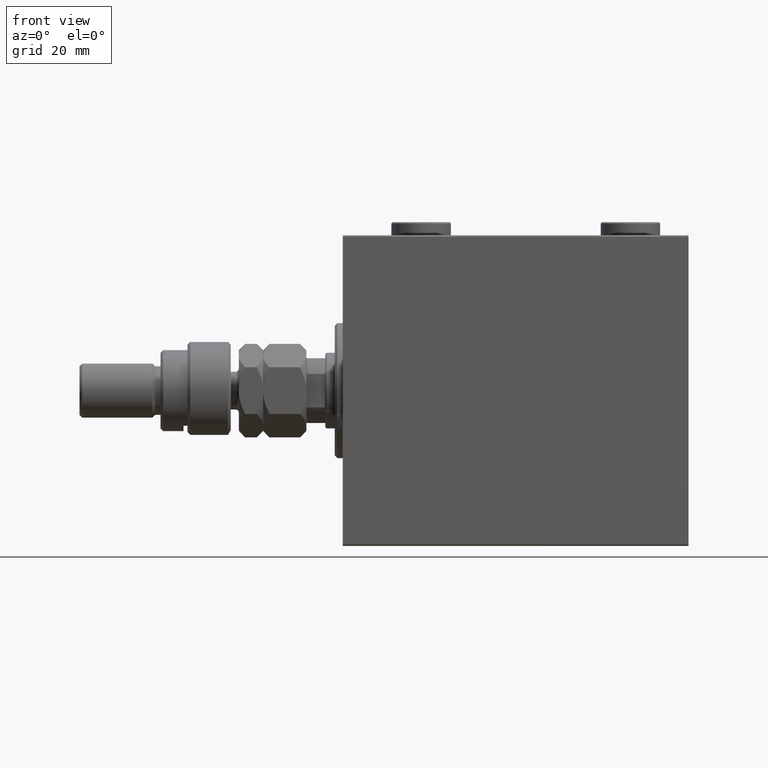
[diagram: clean part render]
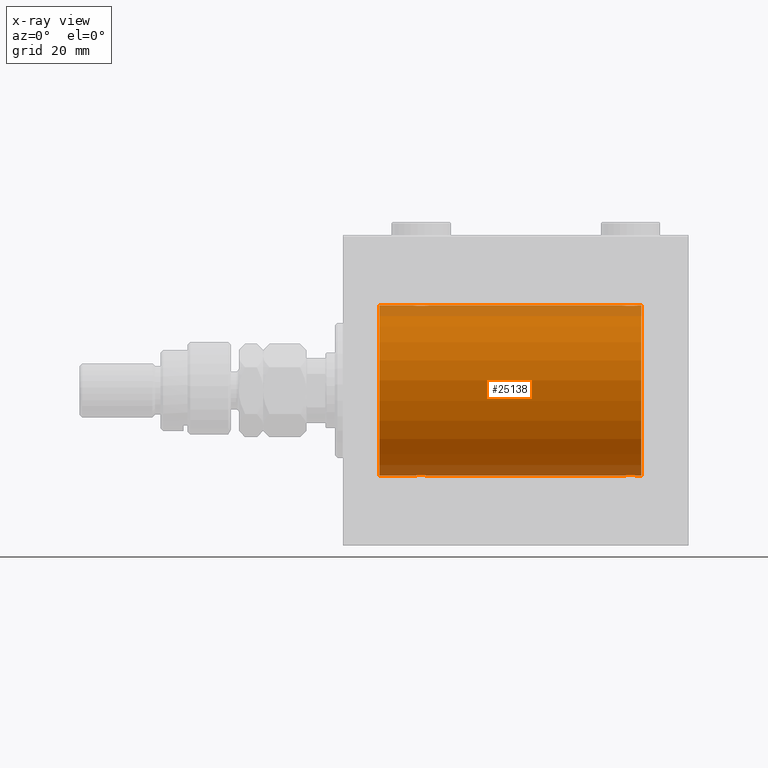
[diagram: x-ray — body ghosted, one internal face saturated and labeled with its STEP entity id]
A machine part, front view, then the same camera in x-ray: the body is ghosted and one INTERNAL B-rep face — a face not visible from any outside direction — is saturated and labeled: STEP entity #25138.
In plain terms, the highlighted cylindrical surface (partial cylindrical patch) has radius 31.5 mm, axis along (-1, -0, -0).
Its self-contained STEP definition (entity closure, byte-faithful):
#135 = CARTESIAN_POINT ( 'NONE',  ( 31.26095462456130747, -1.981494824113326114, -31.43792153503156683 ) ) ;
#261 = CARTESIAN_POINT ( 'NONE',  ( 105.1713458531249188, -2.696917666262924840, -31.38442820068731365 ) ) ;
#388 = CARTESIAN_POINT ( 'NONE',  ( 26.07979337049960478, -0.7905881588836203289, -31.49214662150069088 ) ) ;
#409 = CARTESIAN_POINT ( 'NONE',  ( 109.5000000000000142, -2.415502498297804861E-16, 31.50000000000000000 ) ) ;
#503 = CARTESIAN_POINT ( 'NONE',  ( 108.8850144227692880, -1.830470878313876781, -31.44719957596828763 ) ) ;
#658 = CARTESIAN_POINT ( 'NONE',  ( 26.73904537543869608, -1.981494824113328779, 31.43792153503155973 ) ) ;
#727 = CARTESIAN_POINT ( 'NONE',  ( 103.8980785956084389, -1.506272792558335683, -31.46439306106695710 ) ) ;
#852 = CARTESIAN_POINT ( 'NONE',  ( 28.60885452660059869, -2.980809450819698725, -31.35867074198615256 ) ) ;
#1371 = EDGE_CURVE ( 'NONE', #27988, #7503, #14608, .T. ) ;
#2245 = CARTESIAN_POINT ( 'NONE',  ( 110.5000000000000000, 0.000000000000000000, 0.000000000000000000 ) ) ;
#2847 = CARTESIAN_POINT ( 'NONE',  ( 103.5000000000000284, -0.1958045626907495562, 31.50000000000000000 ) ) ;
#2883 = EDGE_CURVE ( 'NONE', #27659, #11415, #46696, .T. ) ;
#3019 = CARTESIAN_POINT ( 'NONE',  ( 26.00000000000000355, -6.595038141055444136E-15, -31.50000000000000000 ) ) ;
#3113 = CARTESIAN_POINT ( 'NONE',  ( 13.49999999999999822, 0.000000000000000000, 31.50000000000000000 ) ) ;
#3415 = CIRCLE ( 'NONE', #5778, 31.50000000000000000 ) ;
#3555 = CARTESIAN_POINT ( 'NONE',  ( 27.01856537126958813, -2.261012035264781783, -31.41905495618428645 ) ) ;
#3627 = ORIENTED_EDGE ( 'NONE', *, *, #1371, .F. ) ;
#3667 = CARTESIAN_POINT ( 'NONE',  ( 106.3041770556056349, -3.000152387858500802, -31.35680286115499626 ) ) ;
#3789 = CARTESIAN_POINT ( 'NONE',  ( 31.98101509391517538, -0.3904857149111993775, -31.49817436802766224 ) ) ;
#4149 = CYLINDRICAL_SURFACE ( 'NONE', #10415, 31.50000000000000000 ) ;
#4324 = CARTESIAN_POINT ( 'NONE',  ( 26.30285761163300151, -1.328004386210305698, 31.47251238182140298 ) ) ;
#4391 = CARTESIAN_POINT ( 'NONE',  ( 104.6729577462973282, -2.387531469909792481, -31.40957782495775419 ) ) ;
#4512 = B_SPLINE_CURVE_WITH_KNOTS ( 'NONE', 3,
 ( #14526, #2847, #17695, #28895, #22319, #43754, #33503, #13803, #25003, #39865, #25242, #21590, #6506, #36442, #17931, #18896, #15713, #12066, #30098, #26922, #30805, #30559, #23511, #4528, #22554, #41775, #37412, #4768, #26441, #19612, #34457, #409 ),
 .UNSPECIFIED., .F., .F.,
 ( 4, 2, 2, 2, 2, 2, 2, 2, 2, 2, 2, 2, 2, 2, 2, 4 ),
 ( 0.009384682587134660428, 0.009971088165454063124, 0.01055749374377346582, 0.01114389932209286851, 0.01173030490041227121, 0.01231671047873167217, 0.01290311605705107313, 0.01348952163537047583, 0.01407592721368987679, 0.01466233279200927775, 0.01524873837032867871, 0.01583514394864807967, 0.01642154952696748410, 0.01700795510528688506, 0.01759436068360628602, 0.01876717184024507407 ),
 .UNSPECIFIED. ) ;
#4528 = CARTESIAN_POINT ( 'NONE',  ( 108.3270422537027144, -2.387531469909779158, 31.40957782495775419 ) ) ;
#4620 = CARTESIAN_POINT ( 'NONE',  ( 108.3304369148700204, -2.384935707362452195, -31.40977595730572247 ) ) ;
#4768 = CARTESIAN_POINT ( 'NONE',  ( 109.1019214043915326, -1.506272792558327245, 31.46439306106695710 ) ) ;
#5160 = CARTESIAN_POINT ( 'NONE',  ( 103.5000000000000142, -1.354660151018645615E-14, -31.50000000000000000 ) ) ;
#5228 = EDGE_CURVE ( 'NONE', #27988, #44416, #13502, .T. ) ;
#5512 = CARTESIAN_POINT ( 'NONE',  ( 31.92020662950040943, -0.7905881588836116691, 31.49214662150068378 ) ) ;
#5778 = AXIS2_PLACEMENT_3D ( 'NONE', #15623, #19761, #8323 ) ;
#5974 = DIRECTION ( 'NONE',  ( -1.000000000000000000, -0.000000000000000000, -0.000000000000000000 ) ) ;
#6045 = DIRECTION ( 'NONE',  ( -1.000000000000000000, -0.000000000000000000, -0.000000000000000000 ) ) ;
#6479 = CARTESIAN_POINT ( 'NONE',  ( 32.00000000000001421, -0.3965830985361748495, 31.50000000000001421 ) ) ;
#6491 = CARTESIAN_POINT ( 'NONE',  ( 32.00000000000000000, 3.857637396137448068E-15, -31.50000000000000000 ) ) ;
#6506 = CARTESIAN_POINT ( 'NONE',  ( 105.1676004190083944, -2.695056442718549494, 31.38458855656185875 ) ) ;
#7090 = VERTEX_POINT ( 'NONE', #14230 ) ;
#7324 = CARTESIAN_POINT ( 'NONE',  ( 107.4694445565852305, -2.845838211243347793, -31.37127560316186603 ) ) ;
#7448 = CARTESIAN_POINT ( 'NONE',  ( 32.00000000000001421, -0.1958045626907418957, -31.50000000000000711 ) ) ;
#7503 = VERTEX_POINT ( 'NONE', #38012 ) ;
#7561 = CARTESIAN_POINT ( 'NONE',  ( 106.8953411100009703, -2.980257240990069167, -31.35872356503797320 ) ) ;
#7678 = CARTESIAN_POINT ( 'NONE',  ( 28.03484270189360217, -2.847307171789034808, -31.37114183851420179 ) ) ;
#7790 = DIRECTION ( 'NONE',  ( 0.000000000000000000, 0.000000000000000000, 1.000000000000000000 ) ) ;
#7964 = CARTESIAN_POINT ( 'NONE',  ( 26.09580549261944427, -0.7775502215293862429, 31.49099686045558144 ) ) ;
#8160 = CARTESIAN_POINT ( 'NONE',  ( 30.98460359924664687, -2.258226318633781649, -31.41925597582825702 ) ) ;
#8291 = EDGE_CURVE ( 'NONE', #7503, #7090, #26103, .T. ) ;
#8323 = DIRECTION ( 'NONE',  ( 0.000000000000000000, 0.000000000000000000, 1.000000000000000000 ) ) ;
#8627 = CARTESIAN_POINT ( 'NONE',  ( 26.00000000000000355, -6.595038141055444136E-15, -31.50000000000000000 ) ) ;
#8778 = CARTESIAN_POINT ( 'NONE',  ( 110.5000000000000000, 3.857637417314162689E-15, -31.50000000000000000 ) ) ;
#9152 = CARTESIAN_POINT ( 'NONE',  ( 31.38246872266631371, -1.833765390051040223, 31.44700610425690712 ) ) ;
#9274 = VECTOR ( 'NONE', #10085, 1000.000000000000000 ) ;
#9800 = DIRECTION ( 'NONE',  ( 0.000000000000000000, 0.000000000000000000, 1.000000000000000000 ) ) ;
#9878 = CARTESIAN_POINT ( 'NONE',  ( 30.32865414687508832, -2.696917666262907520, 31.38442820068731365 ) ) ;
#10085 = DIRECTION ( 'NONE',  ( -1.000000000000000000, -0.000000000000000000, -0.000000000000000000 ) ) ;
#10118 = CARTESIAN_POINT ( 'NONE',  ( 28.03055544341478722, -2.845838211243333138, 31.37127560316186603 ) ) ;
#10236 = B_SPLINE_CURVE_WITH_KNOTS ( 'NONE', 3,
 ( #11206, #11675, #22895, #12156, #26534, #22172, #11917, #503, #40683, #18749, #4620, #19466, #40927, #7324, #37033, #7561, #37754, #3667, #18996, #15341, #33356, #261, #19231, #4391, #22409, #34074, #37510, #727, #37268, #33604, #29958, #44815 ),
 .UNSPECIFIED., .F., .F.,
 ( 4, 2, 2, 2, 2, 2, 2, 2, 2, 2, 2, 2, 2, 2, 2, 4 ),
 ( 0.009384682587134677775, 0.009971088165454078736, 0.01055749374377348143, 0.01114389932209288239, 0.01173030490041228509, 0.01231671047873168778, 0.01290311605705108874, 0.01348952163537048970, 0.01407592721368989067, 0.01466233279200929336, 0.01524873837032869606, 0.01583514394864809702, 0.01642154952696749798, 0.01700795510528689894, 0.01759436068360629990, 0.01876717184024510529 ),
 .UNSPECIFIED. ) ;
#10415 = AXIS2_PLACEMENT_3D ( 'NONE', #29703, #45273, #7790 ) ;
#11081 = CARTESIAN_POINT ( 'NONE',  ( 28.80417705560560648, -3.000152387858484371, -31.35680286115500337 ) ) ;
#11206 = CARTESIAN_POINT ( 'NONE',  ( 109.5000000000000142, 3.857637396143758955E-15, -31.50000000000000000 ) ) ;
#11327 = CARTESIAN_POINT ( 'NONE',  ( 26.00000000000000355, -0.3965830985361813443, -31.50000000000000711 ) ) ;
#11415 = VERTEX_POINT ( 'NONE', #35620 ) ;
#11615 = ORIENTED_EDGE ( 'NONE', *, *, #26136, .T. ) ;
#11675 = CARTESIAN_POINT ( 'NONE',  ( 109.5000000000000284, -0.1958045626907434222, -31.50000000000000711 ) ) ;
#11842 = CARTESIAN_POINT ( 'NONE',  ( 27.49543714993000876, -2.602826974226395862, 31.39247100434485560 ) ) ;
#11917 = CARTESIAN_POINT ( 'NONE',  ( 109.1041778127473236, -1.502389880412997147, -31.46458023642405877 ) ) ;
#12066 = CARTESIAN_POINT ( 'NONE',  ( 106.6958229443944219, -3.000152387858496805, 31.35680286115500337 ) ) ;
#12156 = CARTESIAN_POINT ( 'NONE',  ( 109.4041945073805948, -0.7775502215293851327, -31.49099686045559565 ) ) ;
#12371 = EDGE_CURVE ( 'NONE', #26742, #26323, #37851, .T. ) ;
#13289 = CARTESIAN_POINT ( 'NONE',  ( 29.77469094434372821, -2.904836261170106404, 31.36579955910873707 ) ) ;
#13502 = LINE ( 'NONE', #43457, #9274 ) ;
#13803 = CARTESIAN_POINT ( 'NONE',  ( 104.1149855772307404, -1.830470878313887884, 31.44719957596828053 ) ) ;
#14169 = ORIENTED_EDGE ( 'NONE', *, *, #47443, .T. ) ;
#14230 = CARTESIAN_POINT ( 'NONE',  ( 109.5000000000000142, -2.415502498297804861E-16, 31.50000000000000000 ) ) ;
#14526 = CARTESIAN_POINT ( 'NONE',  ( 103.5000000000000142, -2.116947682205846230E-23, 31.50000000000000000 ) ) ;
#14608 = CIRCLE ( 'NONE', #16926, 31.50000000000000000 ) ;
#14660 = VERTEX_POINT ( 'NONE', #5160 ) ;
#14740 = CARTESIAN_POINT ( 'NONE',  ( 31.69714238836700915, -1.328004386210301480, -31.47251238182141009 ) ) ;
#14986 = CARTESIAN_POINT ( 'NONE',  ( 27.67134585312494011, -2.696917666262907520, -31.38442820068732786 ) ) ;
#15341 = CARTESIAN_POINT ( 'NONE',  ( 105.7253090556562682, -2.904836261170121947, -31.36579955910872286 ) ) ;
#15507 = CARTESIAN_POINT ( 'NONE',  ( 27.01539640075335669, -2.258226318633785201, 31.41925597582825702 ) ) ;
#15623 = CARTESIAN_POINT ( 'NONE',  ( 13.49999999999999822, 0.000000000000000000, 0.000000000000000000 ) ) ;
#15713 = CARTESIAN_POINT ( 'NONE',  ( 106.2995354102590255, -2.999845816735307036, 31.35683219171744796 ) ) ;
#15916 = ORIENTED_EDGE ( 'NONE', *, *, #38430, .T. ) ;
#16213 = CARTESIAN_POINT ( 'NONE',  ( 26.01898490608483527, -0.3904857149112033743, 31.49817436802766935 ) ) ;
#16702 = CARTESIAN_POINT ( 'NONE',  ( 28.60465888999904749, -2.980257240990054513, 31.35872356503797320 ) ) ;
#16766 = CARTESIAN_POINT ( 'NONE',  ( 103.5000000000000142, -2.116947682205846230E-23, 31.50000000000000000 ) ) ;
#16926 = AXIS2_PLACEMENT_3D ( 'NONE', #2245, #17098, #9800 ) ;
#17098 = DIRECTION ( 'NONE',  ( -1.000000000000000000, 0.000000000000000000, 0.000000000000000000 ) ) ;
#17663 = VERTEX_POINT ( 'NONE', #16766 ) ;
#17695 = CARTESIAN_POINT ( 'NONE',  ( 103.5189849060848388, -0.3904857149112073711, 31.49817436802766935 ) ) ;
#17730 = ORIENTED_EDGE ( 'NONE', *, *, #2883, .T. ) ;
#17931 = CARTESIAN_POINT ( 'NONE',  ( 105.7211808735768415, -2.903733559410697662, 31.36590199989305106 ) ) ;
#18392 = CARTESIAN_POINT ( 'NONE',  ( 26.61753127733371116, -1.833765390051047106, -31.44700610425690002 ) ) ;
#18626 = CARTESIAN_POINT ( 'NONE',  ( 30.33239958099164824, -2.695056442718529954, -31.38458855656185875 ) ) ;
#18749 = CARTESIAN_POINT ( 'NONE',  ( 108.4846035992466398, -2.258226318633792751, -31.41925597582826413 ) ) ;
#18869 = CARTESIAN_POINT ( 'NONE',  ( 27.49901843703856130, -2.604888532024793424, -31.39229907792058683 ) ) ;
#18896 = CARTESIAN_POINT ( 'NONE',  ( 106.1046588899990581, -2.980257240990066947, 31.35872356503798031 ) ) ;
#18981 = CARTESIAN_POINT ( 'NONE',  ( 109.5000000000000142, 3.857637396143758955E-15, -31.50000000000000000 ) ) ;
#18996 = CARTESIAN_POINT ( 'NONE',  ( 106.1088545266006093, -2.980809450819716933, -31.35867074198615967 ) ) ;
#19016 = VERTEX_POINT ( 'NONE', #6491 ) ;
#19092 = CARTESIAN_POINT ( 'NONE',  ( 110.5000000000000000, 0.000000000000000000, 31.50000000000000000 ) ) ;
#19165 = CARTESIAN_POINT ( 'NONE',  ( 26.39582218725271900, -1.502389880413001144, 31.46458023642405166 ) ) ;
#19231 = CARTESIAN_POINT ( 'NONE',  ( 104.9990184370385435, -2.604888532024810299, -31.39229907792057972 ) ) ;
#19346 = CARTESIAN_POINT ( 'NONE',  ( 29.20046458974095671, -2.999845816735294157, -31.35683219171744085 ) ) ;
#19466 = CARTESIAN_POINT ( 'NONE',  ( 108.0045628500700019, -2.602826974226410961, -31.39247100434486271 ) ) ;
#19612 = CARTESIAN_POINT ( 'NONE',  ( 109.4202066295004414, -0.7905881588836165541, 31.49214662150069088 ) ) ;
#19761 = DIRECTION ( 'NONE',  ( -1.000000000000000000, 0.000000000000000000, 0.000000000000000000 ) ) ;
#20680 = ORIENTED_EDGE ( 'NONE', *, *, #40656, .T. ) ;
#21590 = CARTESIAN_POINT ( 'NONE',  ( 104.9954371499300123, -2.602826974226406076, 31.39247100434484850 ) ) ;
#22054 = CARTESIAN_POINT ( 'NONE',  ( 27.17295774629732819, -2.387531469909775605, -31.40957782495775419 ) ) ;
#22172 = CARTESIAN_POINT ( 'NONE',  ( 109.1971423883670127, -1.328004386210309251, -31.47251238182141719 ) ) ;
#22303 = DIRECTION ( 'NONE',  ( -1.000000000000000000, -0.000000000000000000, -0.000000000000000000 ) ) ;
#22319 = CARTESIAN_POINT ( 'NONE',  ( 103.6533953625750115, -0.9669616078782070634, 31.48567319468626735 ) ) ;
#22409 = CARTESIAN_POINT ( 'NONE',  ( 104.5185653712695597, -2.261012035264799103, -31.41905495618427224 ) ) ;
#22554 = CARTESIAN_POINT ( 'NONE',  ( 108.4814346287304261, -2.261012035264784892, 31.41905495618427935 ) ) ;
#22895 = CARTESIAN_POINT ( 'NONE',  ( 109.4810150939152038, -0.3904857149112013204, -31.49817436802766224 ) ) ;
#23016 = CARTESIAN_POINT ( 'NONE',  ( 30.83043691487002746, -2.384935707362433988, -31.40977595730572958 ) ) ;
#23511 = CARTESIAN_POINT ( 'NONE',  ( 108.0009815629614849, -2.604888532024798309, 31.39229907792057972 ) ) ;
#23574 = VECTOR ( 'NONE', #5974, 1000.000000000000000 ) ;
#23905 = EDGE_CURVE ( 'NONE', #17663, #7090, #4512, .T. ) ;
#24491 = CARTESIAN_POINT ( 'NONE',  ( 28.22118087357680238, -2.903733559410683895, 31.36590199989303684 ) ) ;
#24898 = B_SPLINE_CURVE_WITH_KNOTS ( 'NONE', 3,
 ( #30120, #41327, #16213, #7964, #37681, #4324, #19165, #34005, #658, #15507, #45211, #11842, #26701, #10118, #24491, #16702, #28138, #24974, #46163, #13289, #27894, #9878, #42526, #35687, #39837, #43248, #9152, #39111, #39591, #5512, #6479, #46411 ),
 .UNSPECIFIED., .F., .F.,
 ( 4, 2, 2, 2, 2, 2, 2, 2, 2, 2, 2, 2, 2, 2, 2, 4 ),
 ( 0.009384682587134639611, 0.009971088165454038837, 0.01055749374377343980, 0.01114389932209284076, 0.01173030490041223999, 0.01231671047873163921, 0.01290311605705104017, 0.01348952163537044113, 0.01407592721368984036, 0.01466233279200923958, 0.01524873837032864055, 0.01583514394864804151, 0.01642154952696744247, 0.01700795510528683996, 0.01759436068360624092, 0.01876717184024503243 ),
 .UNSPECIFIED. ) ;
#24974 = CARTESIAN_POINT ( 'NONE',  ( 29.19582294439440417, -3.000152387858486147, 31.35680286115499626 ) ) ;
#25003 = CARTESIAN_POINT ( 'NONE',  ( 104.2390453754387067, -1.981494824113344322, 31.43792153503156683 ) ) ;
#25138 = ADVANCED_FACE ( 'NONE', ( #44319 ), #4149, .F. ) ;
#25242 = CARTESIAN_POINT ( 'NONE',  ( 104.6695630851300081, -2.384935707362449087, 31.40977595730572958 ) ) ;
#26103 = LINE ( 'NONE', #33885, #40401 ) ;
#26136 = EDGE_CURVE ( 'NONE', #44416, #14660, #10236, .T. ) ;
#26323 = VERTEX_POINT ( 'NONE', #3113 ) ;
#26416 = CARTESIAN_POINT ( 'NONE',  ( 29.96944455658523054, -2.845838211243329585, -31.37127560316186603 ) ) ;
#26441 = CARTESIAN_POINT ( 'NONE',  ( 109.1952964235901504, -1.331741824817663122, 31.47235367475394341 ) ) ;
#26534 = CARTESIAN_POINT ( 'NONE',  ( 109.3466046374250169, -0.9669616078781998469, -31.48567319468627446 ) ) ;
#26701 = CARTESIAN_POINT ( 'NONE',  ( 27.66760041900836953, -2.695056442718533507, 31.38458855656185875 ) ) ;
#26742 = VERTEX_POINT ( 'NONE', #31255 ) ;
#26900 = CARTESIAN_POINT ( 'NONE',  ( 31.90419450738055218, -0.7775502215293819130, -31.49099686045559565 ) ) ;
#26922 = CARTESIAN_POINT ( 'NONE',  ( 107.2746909443437318, -2.904836261170115730, 31.36579955910872997 ) ) ;
#27384 = CARTESIAN_POINT ( 'NONE',  ( 110.5000000000000000, 3.857637417314162689E-15, -31.50000000000000000 ) ) ;
#27659 = VERTEX_POINT ( 'NONE', #3019 ) ;
#27894 = CARTESIAN_POINT ( 'NONE',  ( 29.96515729810641204, -2.847307171789037028, 31.37114183851420890 ) ) ;
#27988 = VERTEX_POINT ( 'NONE', #8778 ) ;
#28138 = CARTESIAN_POINT ( 'NONE',  ( 28.79953541025904684, -2.999845816735297266, 31.35683219171744796 ) ) ;
#28895 = CARTESIAN_POINT ( 'NONE',  ( 103.5958054926194478, -0.7775502215293907948, 31.49099686045558855 ) ) ;
#29591 = CARTESIAN_POINT ( 'NONE',  ( 26.30470357640989576, -1.331741824817665343, -31.47235367475392920 ) ) ;
#29703 = CARTESIAN_POINT ( 'NONE',  ( 110.5000000000000000, 0.000000000000000000, 0.000000000000000000 ) ) ;
#29837 = CARTESIAN_POINT ( 'NONE',  ( 32.00000000000000000, 3.857637396137448068E-15, -31.50000000000000000 ) ) ;
#29958 = CARTESIAN_POINT ( 'NONE',  ( 103.5000000000000284, -0.3965830985361872840, -31.50000000000000711 ) ) ;
#30022 = EDGE_LOOP ( 'NONE', ( #3627, #41553, #11615, #20680, #15916, #17730, #30813, #41493, #14169, #31211, #38545, #43389 ) ) ;
#30098 = CARTESIAN_POINT ( 'NONE',  ( 106.8911454733994617, -2.980809450819711159, 31.35867074198615967 ) ) ;
#30120 = CARTESIAN_POINT ( 'NONE',  ( 26.00000000000000355, -2.117263226567934635E-23, 31.50000000000000000 ) ) ;
#30559 = CARTESIAN_POINT ( 'NONE',  ( 107.8286541468751238, -2.696917666262913738, 31.38442820068732075 ) ) ;
#30805 = CARTESIAN_POINT ( 'NONE',  ( 107.4651572981063907, -2.847307171789044133, 31.37114183851420890 ) ) ;
#30813 = ORIENTED_EDGE ( 'NONE', *, *, #42666, .T. ) ;
#31023 = LINE ( 'NONE', #27384, #23574 ) ;
#31211 = ORIENTED_EDGE ( 'NONE', *, *, #46729, .F. ) ;
#31255 = CARTESIAN_POINT ( 'NONE',  ( 26.00000000000000355, -2.117263226567934635E-23, 31.50000000000000000 ) ) ;
#33232 = CARTESIAN_POINT ( 'NONE',  ( 26.39807859560848158, -1.506272792558332130, -31.46439306106697131 ) ) ;
#33237 = LINE ( 'NONE', #40816, #35309 ) ;
#33356 = CARTESIAN_POINT ( 'NONE',  ( 105.5348427018936235, -2.847307171789053903, -31.37114183851420179 ) ) ;
#33503 = CARTESIAN_POINT ( 'NONE',  ( 103.8958221872527474, -1.502389880413010026, 31.46458023642405877 ) ) ;
#33604 = CARTESIAN_POINT ( 'NONE',  ( 103.5797933704995870, -0.7905881588836273233, -31.49214662150069088 ) ) ;
#33885 = CARTESIAN_POINT ( 'NONE',  ( 110.5000000000000000, 0.000000000000000000, 31.50000000000000000 ) ) ;
#34005 = CARTESIAN_POINT ( 'NONE',  ( 26.61498557723073333, -1.830470878313877892, 31.44719957596828053 ) ) ;
#34074 = CARTESIAN_POINT ( 'NONE',  ( 104.2417549809673289, -1.984587626072091160, -31.43772577203671048 ) ) ;
#34113 = DIRECTION ( 'NONE',  ( -1.000000000000000000, -0.000000000000000000, -0.000000000000000000 ) ) ;
#34196 = CARTESIAN_POINT ( 'NONE',  ( 29.77881912642320827, -2.903733559410679455, -31.36590199989303684 ) ) ;
#34457 = CARTESIAN_POINT ( 'NONE',  ( 109.5000000000000284, -0.3965830985361750161, 31.50000000000000000 ) ) ;
#35020 = VECTOR ( 'NONE', #38075, 1000.000000000000000 ) ;
#35254 = CARTESIAN_POINT ( 'NONE',  ( 110.5000000000000000, 3.857637417314162689E-15, -31.50000000000000000 ) ) ;
#35309 = VECTOR ( 'NONE', #22303, 1000.000000000000000 ) ;
#35620 = CARTESIAN_POINT ( 'NONE',  ( 13.49999999999999822, 3.857637417314162689E-15, -31.50000000000000000 ) ) ;
#35687 = CARTESIAN_POINT ( 'NONE',  ( 30.82704225370267892, -2.387531469909770276, 31.40957782495776129 ) ) ;
#35993 = CARTESIAN_POINT ( 'NONE',  ( 32.00000000000000000, -3.906065418435112189E-16, 31.50000000000000000 ) ) ;
#36442 = CARTESIAN_POINT ( 'NONE',  ( 105.5305554434148263, -2.845838211243349569, 31.37127560316188024 ) ) ;
#37033 = CARTESIAN_POINT ( 'NONE',  ( 107.2788191264232012, -2.903733559410696774, -31.36590199989303684 ) ) ;
#37138 = B_SPLINE_CURVE_WITH_KNOTS ( 'NONE', 3,
 ( #29837, #7448, #3789, #26900, #37393, #14740, #45405, #37150, #135, #8160, #23016, #37874, #18626, #26416, #34196, #41281, #19346, #11081, #852, #41754, #7678, #14986, #18869, #22054, #3555, #44696, #18392, #33232, #29591, #388, #11327, #8627 ),
 .UNSPECIFIED., .F., .F.,
 ( 4, 2, 2, 2, 2, 2, 2, 2, 2, 2, 2, 2, 2, 2, 2, 4 ),
 ( 0.009384682587134662163, 0.009971088165454068328, 0.01055749374377347449, 0.01114389932209288066, 0.01173030490041228682, 0.01231671047873168605, 0.01290311605705108527, 0.01348952163537048277, 0.01407592721368988199, 0.01466233279200928122, 0.01524873837032868044, 0.01583514394864807967, 0.01642154952696747716, 0.01700795510528687812, 0.01759436068360627908, 0.01876717184024507407 ),
 .UNSPECIFIED. ) ;
#37150 = CARTESIAN_POINT ( 'NONE',  ( 31.38501442276926667, -1.830470878313872563, -31.44719957596828763 ) ) ;
#37268 = CARTESIAN_POINT ( 'NONE',  ( 103.8047035764099206, -1.331741824817675113, -31.47235367475394341 ) ) ;
#37393 = CARTESIAN_POINT ( 'NONE',  ( 31.84660463742499559, -0.9669616078781945179, -31.48567319468626735 ) ) ;
#37412 = CARTESIAN_POINT ( 'NONE',  ( 108.8824687226663457, -1.833765390051044442, 31.44700610425689291 ) ) ;
#37510 = CARTESIAN_POINT ( 'NONE',  ( 104.1175312773337254, -1.833765390051052657, -31.44700610425689291 ) ) ;
#37681 = CARTESIAN_POINT ( 'NONE',  ( 26.15339536257501507, -0.9669616078781987367, 31.48567319468626735 ) ) ;
#37754 = CARTESIAN_POINT ( 'NONE',  ( 106.7004645897409603, -2.999845816735310589, -31.35683219171744796 ) ) ;
#37851 = LINE ( 'NONE', #19092, #35020 ) ;
#37874 = CARTESIAN_POINT ( 'NONE',  ( 30.50456285006998769, -2.602826974226392309, -31.39247100434485560 ) ) ;
#38012 = CARTESIAN_POINT ( 'NONE',  ( 110.5000000000000000, 0.000000000000000000, 31.50000000000000000 ) ) ;
#38075 = DIRECTION ( 'NONE',  ( -1.000000000000000000, -0.000000000000000000, -0.000000000000000000 ) ) ;
#38430 = EDGE_CURVE ( 'NONE', #19016, #27659, #37138, .T. ) ;
#38545 = ORIENTED_EDGE ( 'NONE', *, *, #23905, .T. ) ;
#39111 = CARTESIAN_POINT ( 'NONE',  ( 31.60192140439154684, -1.506272792558323470, 31.46439306106697131 ) ) ;
#39591 = CARTESIAN_POINT ( 'NONE',  ( 31.69529642359010424, -1.331741824817659348, 31.47235367475393630 ) ) ;
#39837 = CARTESIAN_POINT ( 'NONE',  ( 30.98143462873041898, -2.261012035264782227, 31.41905495618429356 ) ) ;
#39865 = CARTESIAN_POINT ( 'NONE',  ( 104.5153964007534029, -2.258226318633800300, 31.41925597582826413 ) ) ;
#40401 = VECTOR ( 'NONE', #34113, 1000.000000000000000 ) ;
#40656 = EDGE_CURVE ( 'NONE', #14660, #19016, #31023, .T. ) ;
#40683 = CARTESIAN_POINT ( 'NONE',  ( 108.7609546245613501, -1.981494824113334774, -31.43792153503157394 ) ) ;
#40816 = CARTESIAN_POINT ( 'NONE',  ( 110.5000000000000000, 0.000000000000000000, 31.50000000000000000 ) ) ;
#40927 = CARTESIAN_POINT ( 'NONE',  ( 107.8323995809916624, -2.695056442718546830, -31.38458855656186230 ) ) ;
#41281 = CARTESIAN_POINT ( 'NONE',  ( 29.39534111000094541, -2.980257240990050960, -31.35872356503797320 ) ) ;
#41327 = CARTESIAN_POINT ( 'NONE',  ( 26.00000000000001066, -0.1958045626907463088, 31.50000000000000711 ) ) ;
#41493 = ORIENTED_EDGE ( 'NONE', *, *, #12371, .F. ) ;
#41553 = ORIENTED_EDGE ( 'NONE', *, *, #5228, .T. ) ;
#41754 = CARTESIAN_POINT ( 'NONE',  ( 28.22530905565627179, -2.904836261170103739, -31.36579955910872286 ) ) ;
#41775 = CARTESIAN_POINT ( 'NONE',  ( 108.7582450190326995, -1.984587626072075617, 31.43772577203671759 ) ) ;
#42382 = VERTEX_POINT ( 'NONE', #35993 ) ;
#42526 = CARTESIAN_POINT ( 'NONE',  ( 30.50098156296146712, -2.604888532024788983, 31.39229907792058683 ) ) ;
#42655 = VECTOR ( 'NONE', #6045, 1000.000000000000000 ) ;
#42666 = EDGE_CURVE ( 'NONE', #11415, #26323, #3415, .T. ) ;
#43248 = CARTESIAN_POINT ( 'NONE',  ( 31.25824501903266039, -1.984587626072074285, 31.43772577203672469 ) ) ;
#43389 = ORIENTED_EDGE ( 'NONE', *, *, #8291, .F. ) ;
#43457 = CARTESIAN_POINT ( 'NONE',  ( 110.5000000000000000, 3.857637417314162689E-15, -31.50000000000000000 ) ) ;
#43754 = CARTESIAN_POINT ( 'NONE',  ( 103.8028576116330157, -1.328004386210315024, 31.47251238182141719 ) ) ;
#44319 = FACE_OUTER_BOUND ( 'NONE', #30022, .T. ) ;
#44416 = VERTEX_POINT ( 'NONE', #18981 ) ;
#44696 = CARTESIAN_POINT ( 'NONE',  ( 26.74175498096735026, -1.984587626072075617, -31.43772577203673180 ) ) ;
#44815 = CARTESIAN_POINT ( 'NONE',  ( 103.5000000000000142, -1.354660151018645615E-14, -31.50000000000000000 ) ) ;
#45211 = CARTESIAN_POINT ( 'NONE',  ( 27.16956308512997964, -2.384935707362437096, 31.40977595730572958 ) ) ;
#45273 = DIRECTION ( 'NONE',  ( -1.000000000000000000, -0.000000000000000000, -0.000000000000000000 ) ) ;
#45405 = CARTESIAN_POINT ( 'NONE',  ( 31.60417781274729165, -1.502389880412996259, -31.46458023642406587 ) ) ;
#46163 = CARTESIAN_POINT ( 'NONE',  ( 29.39114547339941552, -2.980809450819701834, 31.35867074198615967 ) ) ;
#46411 = CARTESIAN_POINT ( 'NONE',  ( 32.00000000000000000, -3.906065418435112189E-16, 31.50000000000000000 ) ) ;
#46696 = LINE ( 'NONE', #35254, #42655 ) ;
#46729 = EDGE_CURVE ( 'NONE', #17663, #42382, #33237, .T. ) ;
#47443 = EDGE_CURVE ( 'NONE', #26742, #42382, #24898, .T. ) ;